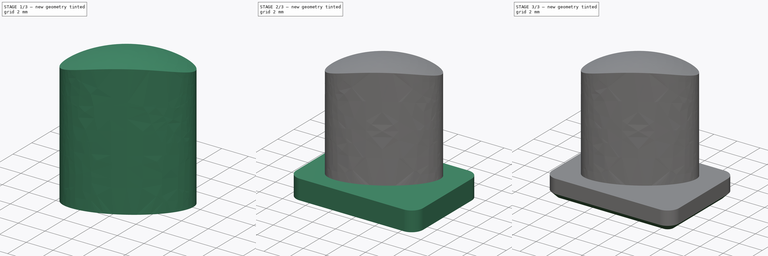
[diagram: build sequence overview — one tinted view per stage of 3, left to right]
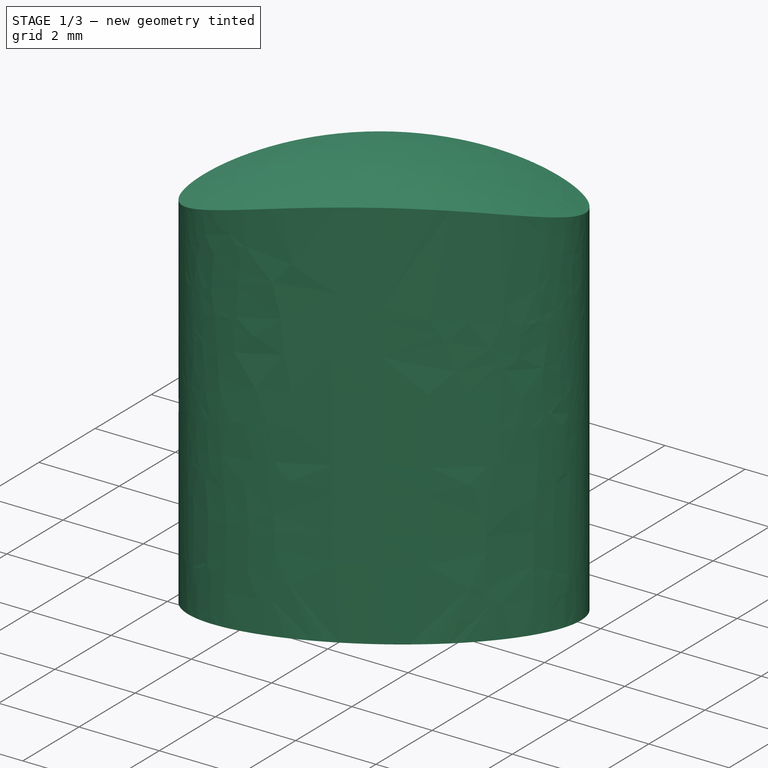
[diagram: stage 1 of 3 — iso view after this stage's code; geometry added in this stage tinted green]
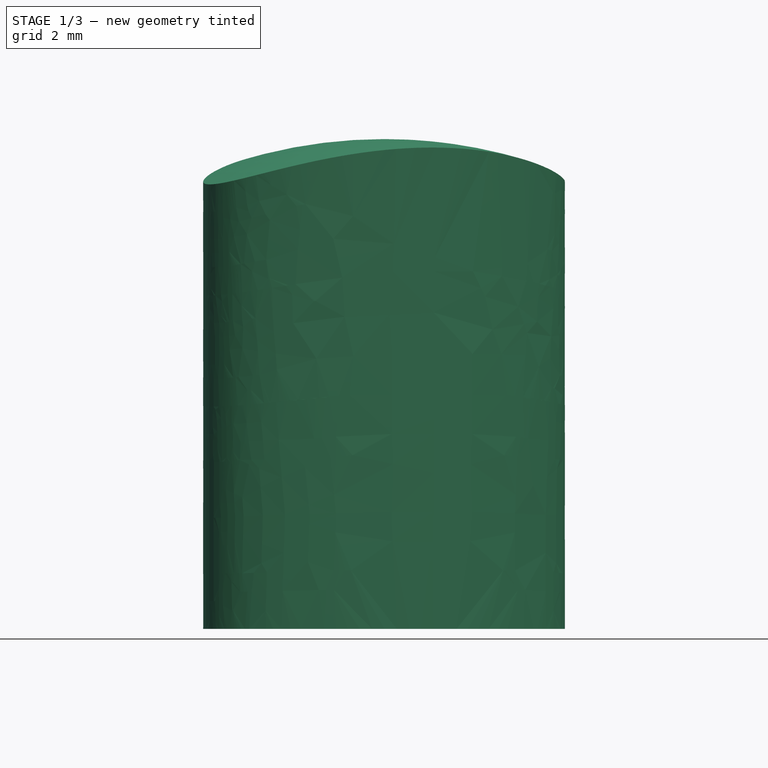
[diagram: stage 1 of 3 — front view after this stage's code; geometry added in this stage tinted green]
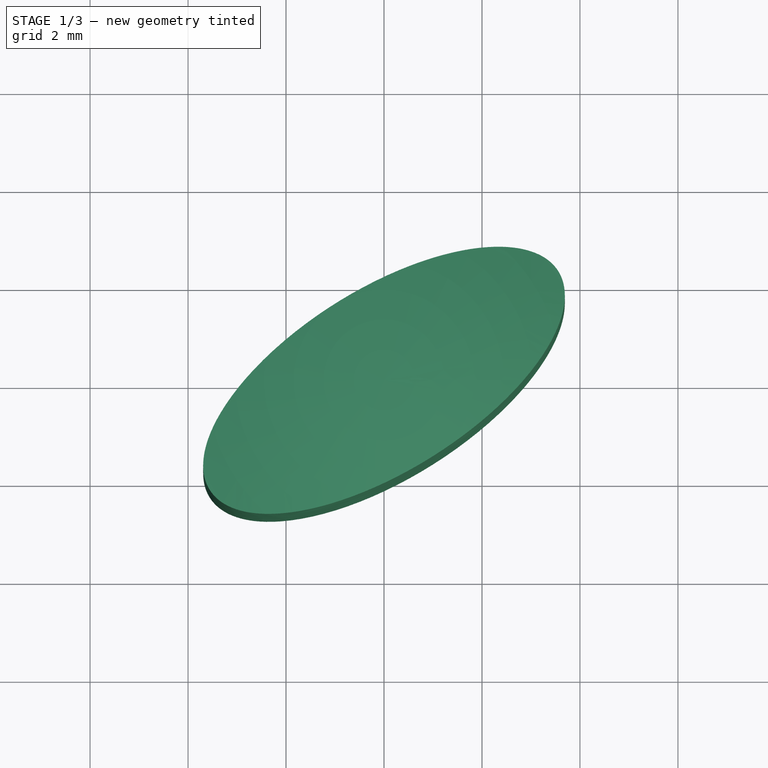
[diagram: stage 1 of 3 — top view after this stage's code; geometry added in this stage tinted green]
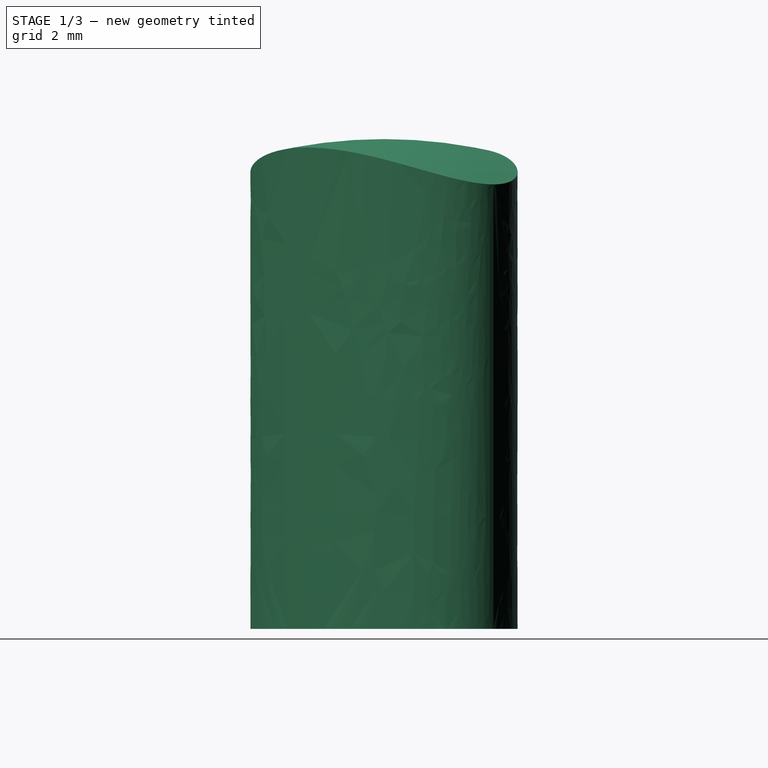
[diagram: stage 1 of 3 — right view after this stage's code; geometry added in this stage tinted green]
FCSTD DOCUMENT  (FreeCAD 0.19R24267 +99 (Git))
Label: Button Blue Auto-Fire
License: All rights reserved
LicenseURL: http://en.wikipedia.org/wiki/All_rights_reserved
objects: Sketcher::SketchObject×4, PartDesign::Pocket×3, PartDesign::AdditiveSphere×1, PartDesign::Pad×1, PartDesign::Chamfer×1, PartDesign::Body×1, App::MeasureDistance×1
note: 17 computed .brp shape members not serialized (recipe doc carries the construction recipe); baked Part::Feature solids carry a one-line shape summary decoded from their .brp

FEATURE [PartDesign::AdditiveSphere] Sphere
  Angle1 = 0
  Angle2 = 90
  Angle3 = 360
  AttacherType = Attacher::AttachEngine3D
  Radius = 10
FEATURE [Sketcher::SketchObject] Sketch  label="Ovoloïde"
  FullyConstrained = true
  MapMode = 5
  Placement = pos=(0,0,0) rot=(1,0,0;3.14159rad)
  Support = -> [Sphere]
  sketch-geometry (9):
    g0: Ellipse CenterX=0 CenterY=0 CenterZ=0 NormalX=0 NormalY=0 NormalZ=1 MajorRadius=4.2 MinorRadius=1.85 AngleXU=-0.560251
    g1: LineSegment StartX=3.55791 StartY=-2.23187 StartZ=0 EndX=-3.55791 EndY=2.23187 EndZ=0
    g2: LineSegment StartX=0.983087 StartY=1.56718 StartZ=0 EndX=-0.983087 EndY=-1.56718 EndZ=0
    g3: GeomPoint X=3.19417 Y=-2.0037 Z=0
    g4: GeomPoint X=-3.19417 Y=2.0037 Z=0
    g5: LineSegment StartX=-15 StartY=15 StartZ=0 EndX=15 EndY=15 EndZ=0
    g6: LineSegment StartX=15 StartY=15 StartZ=0 EndX=15 EndY=-15 EndZ=0
    g7: LineSegment StartX=15 StartY=-15 StartZ=0 EndX=-15 EndY=-15 EndZ=0
    g8: LineSegment StartX=-15 StartY=-15 StartZ=0 EndX=-15 EndY=15 EndZ=0
  constraints (15):
    c: InternalAlignment(g1-g4 -> g0) x4
    c: Coincident(g0,g-1)
    c: Coincident(g5,g6)
    c: Coincident(g6,g7)
    c: Coincident(g7,g8)
    c: Coincident(g8,g5)
    c: Horizontal(g7)
    c: Vertical(g8)
    c: Symmetric(g5,g5,g-2)
    c: Symmetric(g5,g6,g-1)
    c: Equal(g5,g6)
    c: Distance(g5,g6) = 30
    c: Distance(g2,g2) = 3.7
    c: Distance(g1,g1) = 8.4
    c: Angle(g1,g-1) = 0.560251
FEATURE [PartDesign::Pocket] Pocket  label="Body"
  BaseFeature = -> Sphere
  Length = 5
  Length2 = 100
  Profile = -> Sketch
  Type = 1
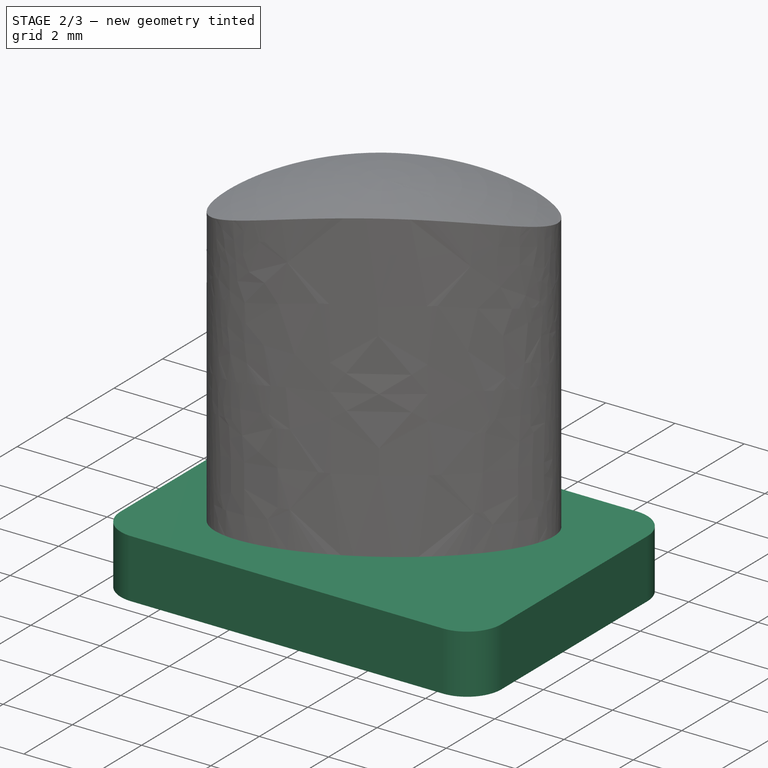
[diagram: stage 2 of 3 — iso view after this stage's code; geometry added in this stage tinted green]
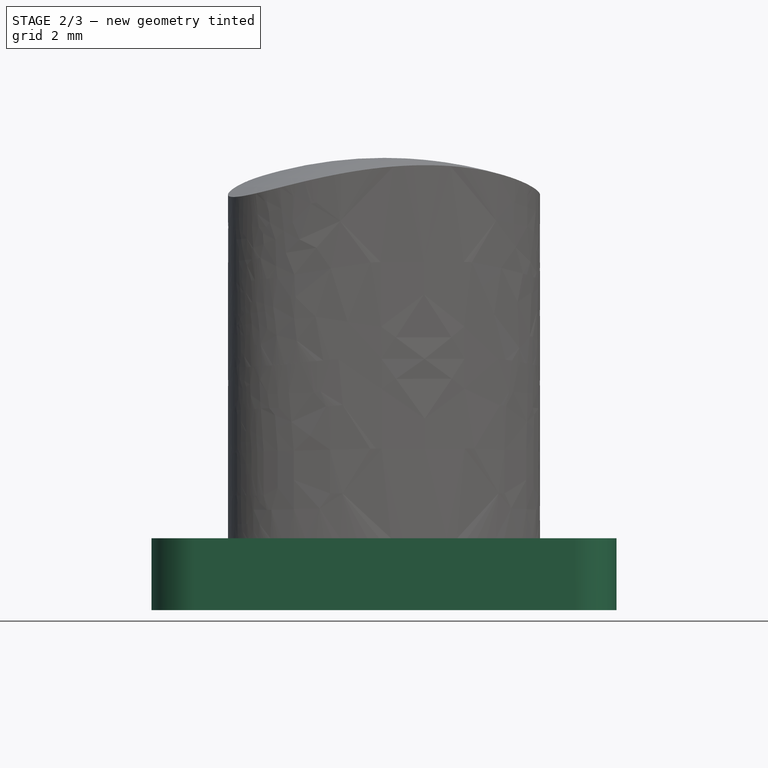
[diagram: stage 2 of 3 — front view after this stage's code; geometry added in this stage tinted green]
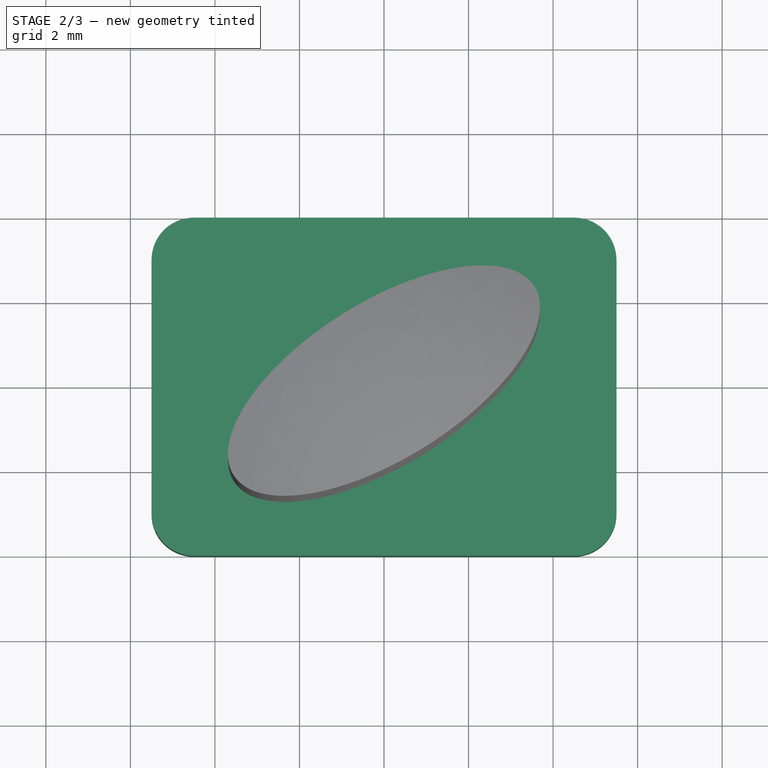
[diagram: stage 2 of 3 — top view after this stage's code; geometry added in this stage tinted green]
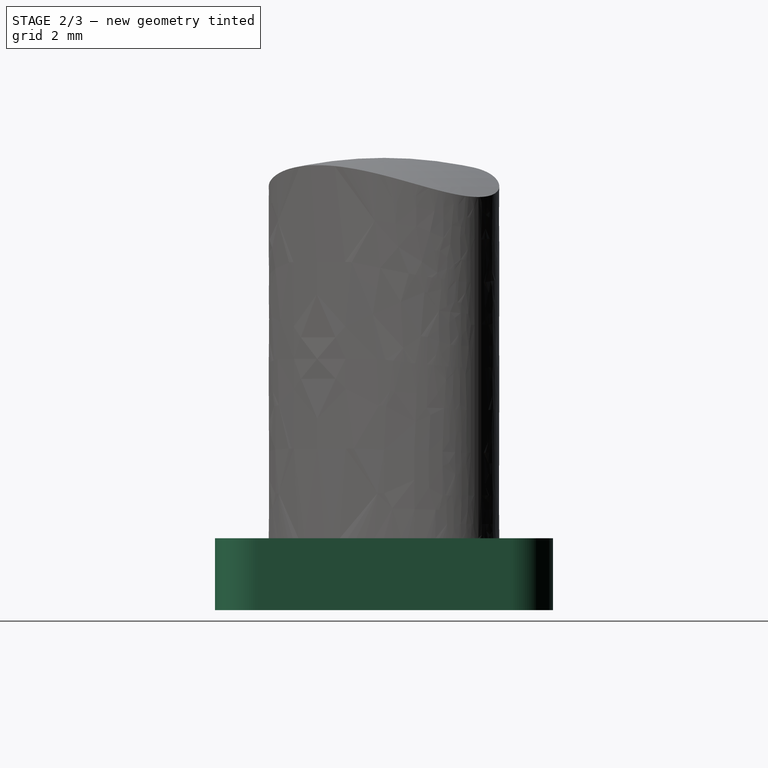
[diagram: stage 2 of 3 — right view after this stage's code; geometry added in this stage tinted green]
FEATURE [Sketcher::SketchObject] Sketch001  label="SquareReduction"
  FullyConstrained = true
  MapMode = 5
  Placement = pos=(0,0,0) rot=(1,0,0;3.14159rad)
  Support = -> [Pocket]
  sketch-geometry (4):
    g0: LineSegment StartX=-5 StartY=5 StartZ=0 EndX=5 EndY=5 EndZ=0
    g1: LineSegment StartX=5 StartY=5 StartZ=0 EndX=5 EndY=-5 EndZ=0
    g2: LineSegment StartX=5 StartY=-5 StartZ=0 EndX=-5 EndY=-5 EndZ=0
    g3: LineSegment StartX=-5 StartY=-5 StartZ=0 EndX=-5 EndY=5 EndZ=0
  constraints (10):
    c: Coincident(g0,g1)
    c: Coincident(g1,g2)
    c: Coincident(g2,g3)
    c: Coincident(g3,g0)
    c: Horizontal(g2)
    c: Vertical(g3)
    c: Symmetric(g0,g0,g-2)
    c: Symmetric(g0,g1,g-1)
    c: Equal(g0,g1)
    c: Distance(g0,g1) = 10
FEATURE [PartDesign::Pocket] Pocket001  label="Reduction"
  BaseFeature = -> Pocket
  Length = 1
  Length2 = 100
  Profile = -> Sketch001
  Type = 0
FEATURE [Sketcher::SketchObject] Sketch002  label="RoundedRectangle"
  FullyConstrained = true
  MapMode = 5
  Placement = pos=(0,0,1) rot=(1,0,0;3.14159rad)
  Support = -> [Pocket001]
  sketch-geometry (8):
    g0: LineSegment StartX=-4.5 StartY=4 StartZ=0 EndX=4.5 EndY=4 EndZ=0
    g1: LineSegment StartX=5.5 StartY=3 StartZ=0 EndX=5.5 EndY=-3 EndZ=0
    g2: LineSegment StartX=4.5 StartY=-4 StartZ=0 EndX=-4.5 EndY=-4 EndZ=0
    g3: LineSegment StartX=-5.5 StartY=-3 StartZ=0 EndX=-5.5 EndY=3 EndZ=0
    g4: ArcOfCircle CenterX=-4.5 CenterY=3 CenterZ=0 NormalX=0 NormalY=0 NormalZ=1 AngleXU=0 Radius=1 StartAngle=1.5708 EndAngle=3.14159
    g5: ArcOfCircle CenterX=4.5 CenterY=3 CenterZ=0 NormalX=0 NormalY=0 NormalZ=1 AngleXU=0 Radius=1 StartAngle=0 EndAngle=1.5708
    g6: ArcOfCircle CenterX=4.5 CenterY=-3 CenterZ=0 NormalX=0 NormalY=0 NormalZ=1 AngleXU=0 Radius=1 StartAngle=4.71239 EndAngle=6.28319
    g7: ArcOfCircle CenterX=-4.5 CenterY=-3 CenterZ=0 NormalX=0 NormalY=0 NormalZ=1 AngleXU=0 Radius=1 StartAngle=3.14159 EndAngle=4.71239
  constraints (24):
    c: Horizontal(g2)
    c: Vertical(g3)
    c: Coincident(g4,g3)
    c: Coincident(g4,g0)
    c: Coincident(g5,g0)
    c: Coincident(g5,g1)
    c: Coincident(g6,g1)
    c: Coincident(g6,g2)
    c: Coincident(g7,g2)
    c: Coincident(g7,g3)
    c: Symmetric(g0,g0,g-2)
    c: Symmetric(g1,g1,g-1)
    c: Symmetric(g3,g1,g-2)
    c: Symmetric(g2,g0,g-1)
    c: Equal(g0,g2)
    c: Equal(g1,g3)
    c: Vertical(g0,g5)
    c: Horizontal(g1,g5)
    c: Horizontal(g6,g1)
    c: Vertical(g7,g2)
    c: Horizontal(g3,g4)
    c: Distance(g5,g1) = 1
    c: Distance(g3,g1) = 11
    c: Distance(g0,g2) = 8
FEATURE [PartDesign::Pad] Pad  label="Custody"
  BaseFeature = -> Pocket001
  Direction = (1,1,1)
  Length = 1.7
  Length2 = 100
  Profile = -> Sketch002
  Type = 0
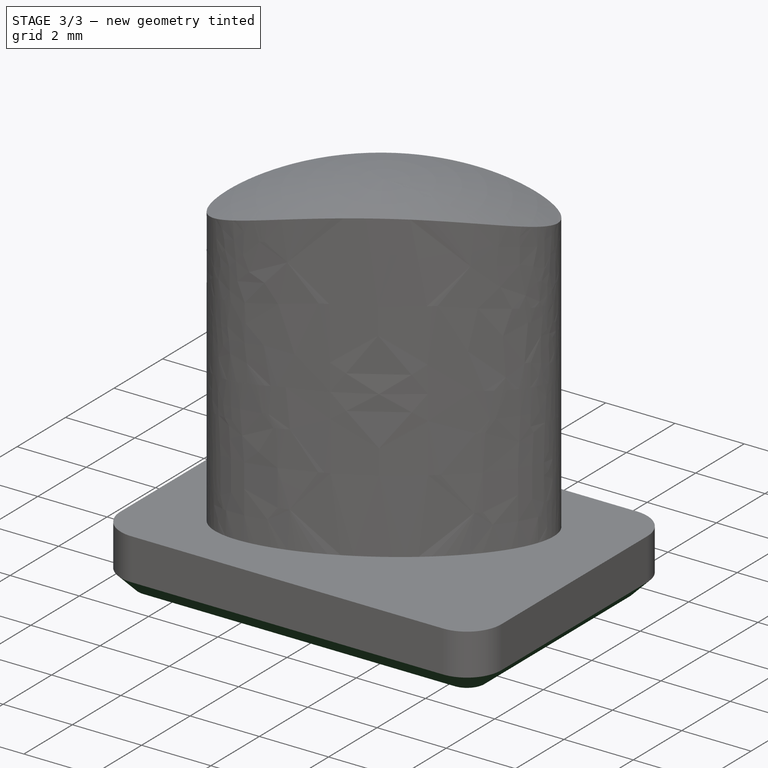
[diagram: stage 3 of 3 — iso view after this stage's code; geometry added in this stage tinted green]
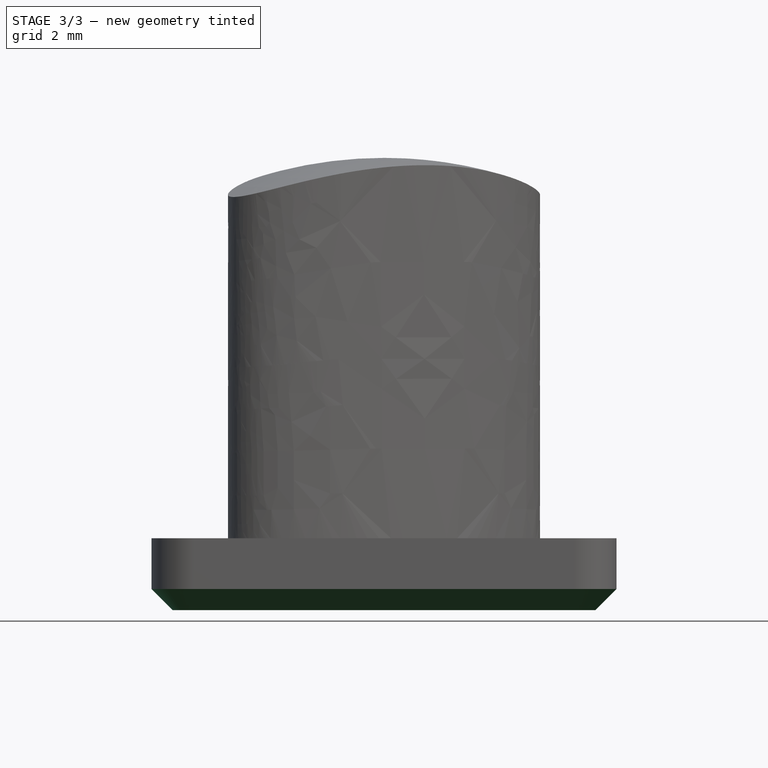
[diagram: stage 3 of 3 — front view after this stage's code; geometry added in this stage tinted green]
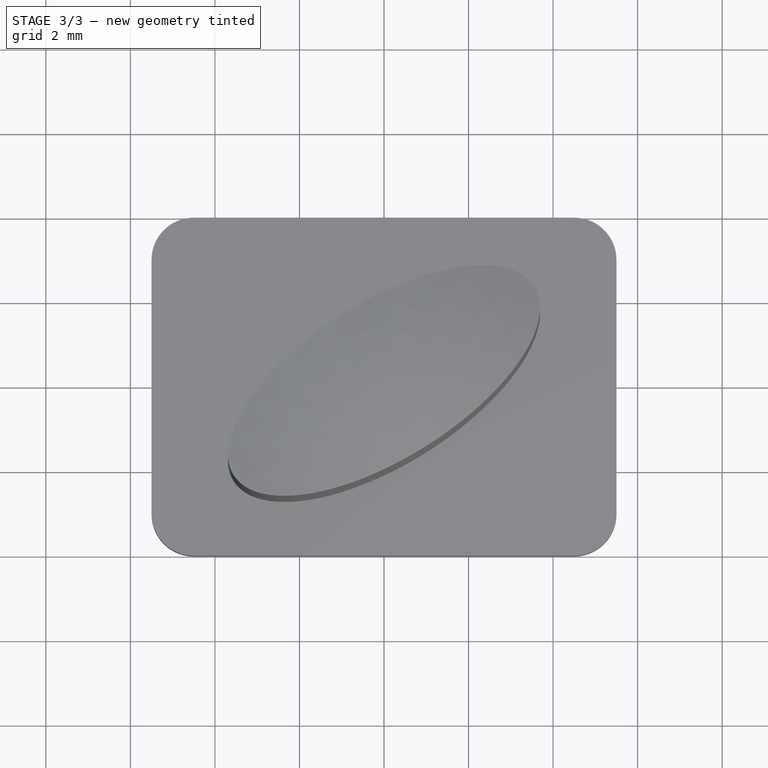
[diagram: stage 3 of 3 — top view after this stage's code; geometry added in this stage tinted green]
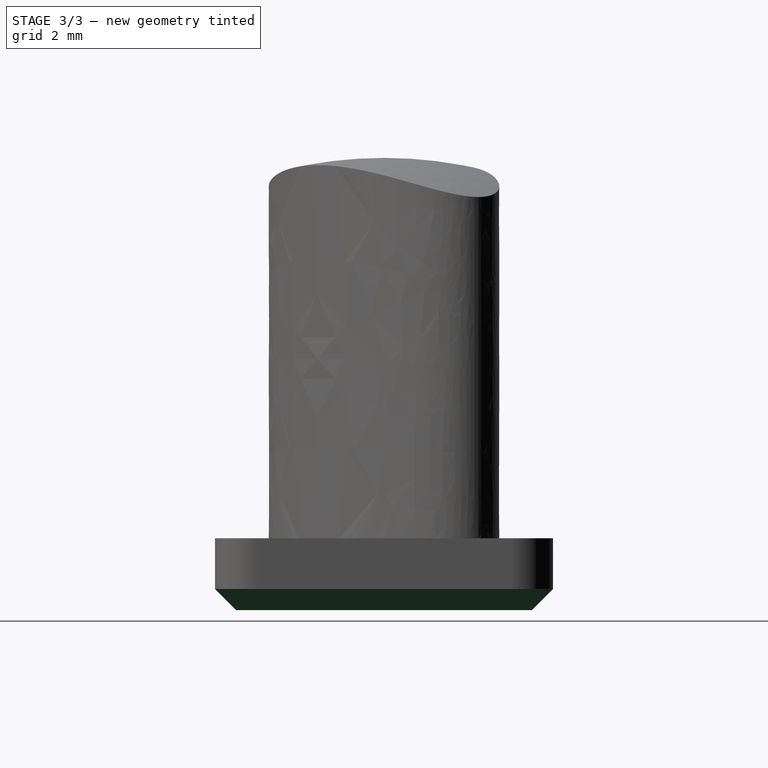
[diagram: stage 3 of 3 — right view after this stage's code; geometry added in this stage tinted green]
FEATURE [Sketcher::SketchObject] Sketch003  label="Square"
  FullyConstrained = true
  MapMode = 5
  Placement = pos=(0,0,-0.7) rot=(1,0,0;3.14159rad)
  Support = -> [Pad]
  sketch-geometry (4):
    g0: LineSegment StartX=-0.357873 StartY=1.51391 StartZ=0 EndX=1.51391 EndY=0.357873 EndZ=0
    g1: LineSegment StartX=1.51391 StartY=0.357873 StartZ=0 EndX=0.357873 EndY=-1.51391 EndZ=0
    g2: LineSegment StartX=0.357873 StartY=-1.51391 StartZ=0 EndX=-1.51391 EndY=-0.357873 EndZ=0
    g3: LineSegment StartX=-1.51391 StartY=-0.357873 StartZ=0 EndX=-0.357873 EndY=1.51391 EndZ=0
  constraints (10):
    c: Coincident(g0,g1)
    c: Coincident(g1,g2)
    c: Coincident(g2,g3)
    c: Coincident(g3,g0)
    c: Symmetric(g0,g2,g-1)
    c: Symmetric(g0,g1,g-1)
    c: Equal(g0,g1)
    c: Perpendicular(g1,g0)
    c: Distance(g0,g0) = 2.2
    c: Angle(g-1,g0) = -0.553269
FEATURE [PartDesign::Pocket] Pocket002  label="SwitchHole"
  BaseFeature = -> Pad
  Length = 5
  Length2 = 100
  Profile = -> Sketch003
  Type = 0
FEATURE [PartDesign::Chamfer] Chamfer
  Angle = 45
  Base = -> Pocket002 [Face5]
  BaseFeature = -> Pocket002
  ChamferType = 0
  FlipDirection = false
  Size = 0.5
  Size2 = 1
  SupportTransform = false
FEATURE [PartDesign::Body] Body  label="Button Blue"
  Group = -> [Sphere,Sketch,Pocket,Sketch001,Pocket001,Sketch002,Pad,Sketch003,Pocket002,Chamfer]
  Origin = -> Origin
  Tip = -> Chamfer
FEATURE [App::MeasureDistance] Distance  label="Distance: 10,70 mm"
  Distance = 10.7
  P1 = (0,0,10)
  P2 = (0,0,-0.7)
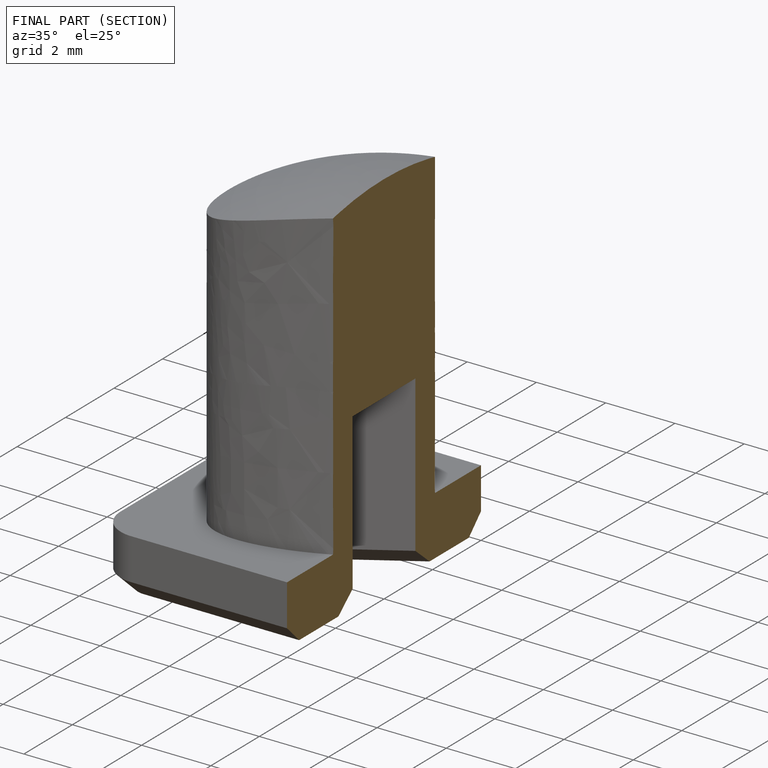
[diagram: finished part — half-section view (interior)]
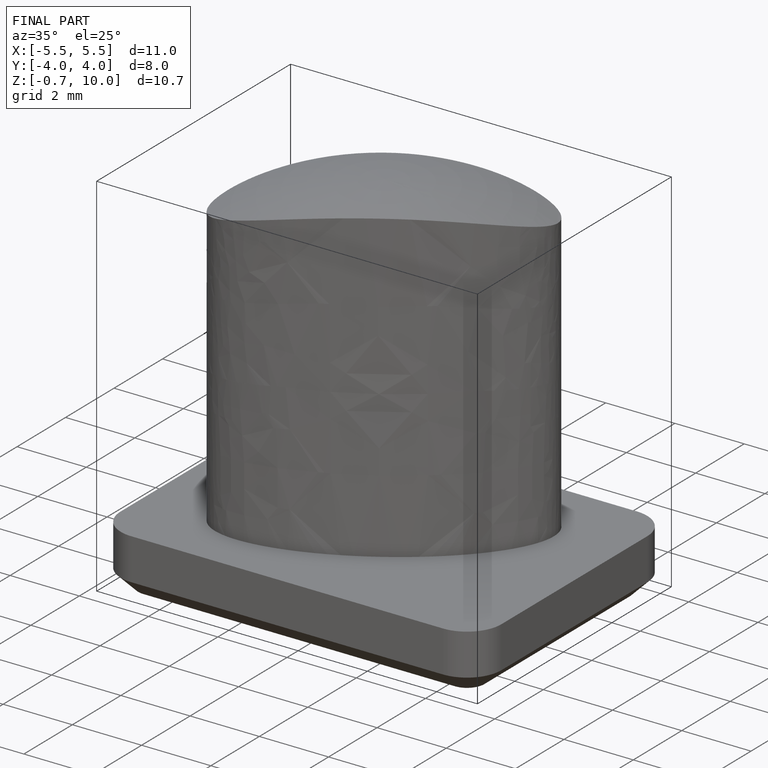
[diagram: finished part — iso view with bounding-box wireframe]
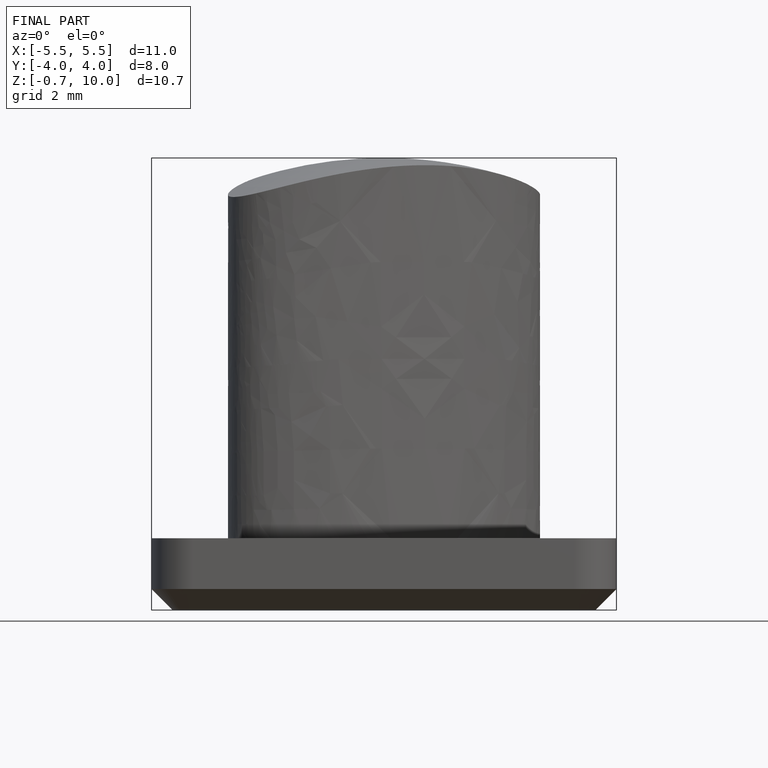
[diagram: finished part — front view with bounding-box wireframe]
